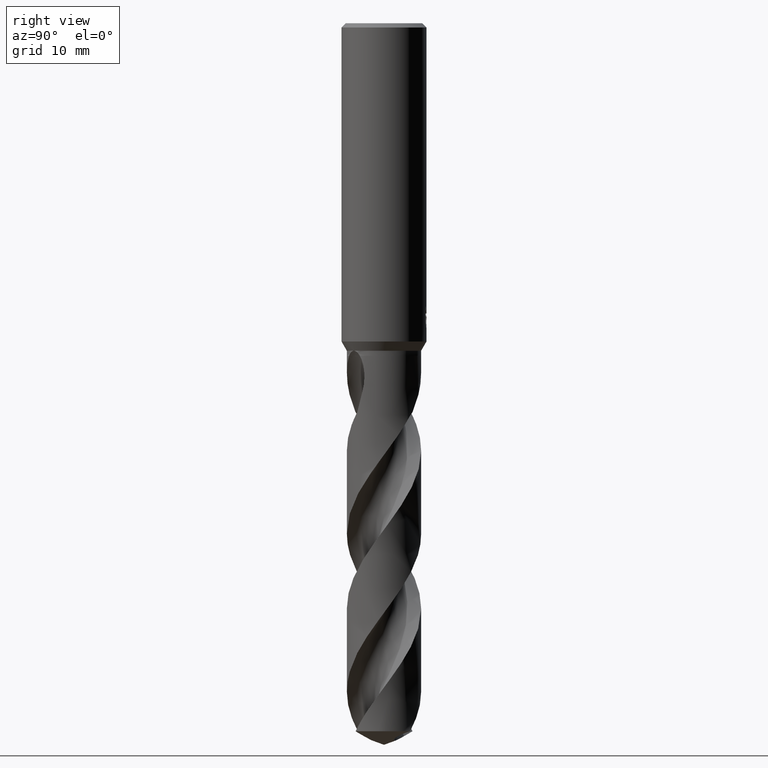
[diagram: clean part render]
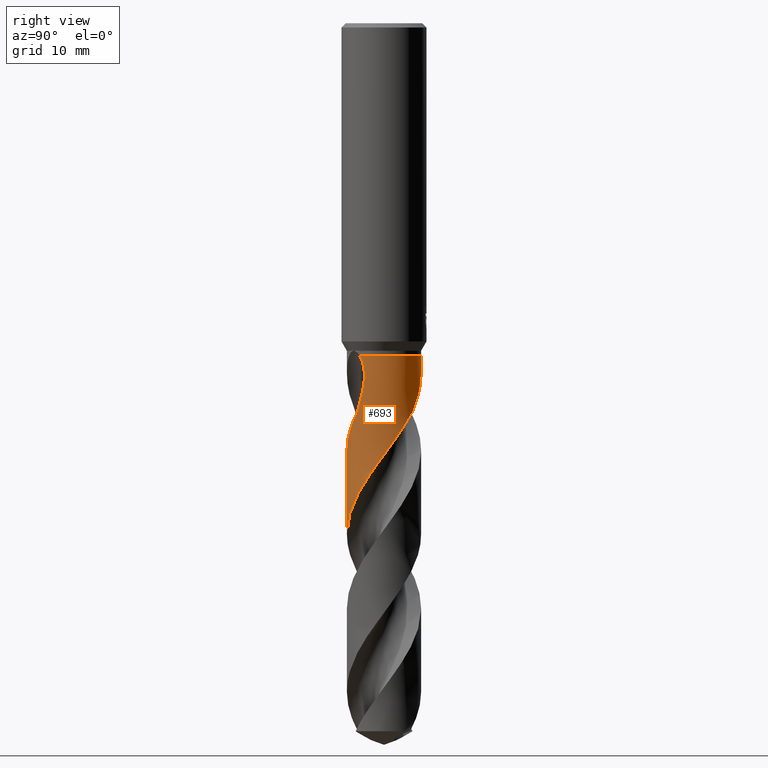
[diagram: same view with one face highlighted and labeled with its STEP entity id]
A machine part, right view. The second image highlights one B-rep face of the part: STEP entity #693.
In plain terms, the highlighted conical surface has half-angle 0 deg.
Its self-contained STEP definition (entity closure, byte-faithful):
#305=VERTEX_POINT('',#820);
#317=EDGE_CURVE('',#751,#545,#832,.T.);
#335=VERTEX_POINT('',#852);
#453=EDGE_CURVE('',#335,#305,#979,.T.);
#485=EDGE_CURVE('',#335,#521,#1014,.T.);
#511=EDGE_CURVE('',#545,#771,#1043,.T.);
#521=VERTEX_POINT('',#1055);
#523=VERTEX_POINT('',#1057);
#545=VERTEX_POINT('',#1082);
#573=EDGE_CURVE('',#523,#521,#1115,.T.);
#589=EDGE_CURVE('',#751,#665,#1132,.T.);
#627=EDGE_CURVE('',#771,#523,#1173,.T.);
#665=VERTEX_POINT('',#1214);
#693=ADVANCED_FACE('',(#1244),#1245,.T.);
#731=EDGE_CURVE('',#305,#665,#1288,.T.);
#751=VERTEX_POINT('',#1311);
#771=VERTEX_POINT('',#1331);
#820=CARTESIAN_POINT('',(3.34534853535633,4.04601659429047,-54.943));
#832=CIRCLE('',#1533,5.2499);
#852=CARTESIAN_POINT('',(5.03929219996868E-010,-5.24994741629352,-72.1729101661895));
#979=B_SPLINE_CURVE_WITH_KNOTS('',3,(#2623,#2624,#2625,#2626,#2627,#2628,#2629,#2630,#2631,#2632,#2633,#2634,#2635,#2636,#2637,#2638,#2639,#2640,#2641,#2642,#2643,#2644,#2645,#2646,#2647,#2648,#2649,#2650,#2651,#2652,#2653,#2654,#2655,#2656,#2657,#2658,#2659,#2660,#2661,#2662,#2663,#2664,#2665,#2666,#2667,#2668,#2669,#2670,#2671,#2672,#2673,#2674,#2675,#2676,#2677,#2678,#2679,#2680,#2681,#2682,#2683,#2684,#2685,#2686,#2687,#2688,#2689,#2690,#2691,#2692,#2693,#2694,#2695,#2696,#2697,#2698),.UNSPECIFIED.,.F.,.F.,(4,2,2,2,2,2,2,2,2,2,2,2,2,2,2,2,2,2,2,2,2,2,2,2,2,2,2,2,2,2,2,2,2,2,2,2,2,4),(0.0,1.5528327753264,4.42357731136501,5.53483794826949,8.50429462413124,8.86149413355706,11.6809212029721,13.445651179475,15.2250571269194,16.3347312932081,19.2233171328241,20.3875549660882,22.8712285889042,23.9649556648263,25.5303771923254,26.9790196120816,27.0686636719924,29.5796790621381,32.4658920751266,33.538598225695,35.9475975192439,37.9906535802583,38.1703103055075,40.7507350819525,42.5585889797768,45.4567038047538,45.597230985784,50.6030400997125,51.8728951148334,52.4252917677714,53.7623057861514,54.5502108914369,54.9199326118842,55.1482577412486,55.3643236374601,55.6588206816148,56.2808397133437,57.0414279453845),.UNSPECIFIED.);
#1014=LINE('',#2754,#2755);
#1043=B_SPLINE_CURVE_WITH_KNOTS('',3,(#2968,#2969,#2970,#2971,#2972,#2973,#2974,#2975,#2976,#2977),.UNSPECIFIED.,.F.,.F.,(4,2,2,2,4),(0.0,0.984871041529756,2.36181917695434,3.08766115270987,3.84535580056174),.UNSPECIFIED.);
#1055=CARTESIAN_POINT('',(-3.99559332444758E-012,-5.24992526825895,-60.4147054853089));
#1057=CARTESIAN_POINT('',(3.64909590896185,-3.77434844065602,-54.943));
#1082=CARTESIAN_POINT('',(3.97808055895845,-3.42583202688585,-47.0));
#1115=B_SPLINE_CURVE_WITH_KNOTS('',3,(#3097,#3098,#3099,#3100,#3101,#3102,#3103,#3104,#3105,#3106,#3107,#3108,#3109,#3110,#3111,#3112,#3113,#3114,#3115,#3116,#3117,#3118,#3119,#3120,#3121,#3122,#3123,#3124,#3125,#3126,#3127,#3128,#3129,#3130,#3131,#3132,#3133,#3134,#3135,#3136,#3137,#3138,#3139,#3140,#3141,#3142,#3143,#3144,#3145,#3146,#3147,#3148,#3149,#3150,#3151,#3152,#3153,#3154,#3155,#3156,#3157,#3158,#3159,#3160,#3161,#3162,#3163,#3164,#3165,#3166,#3167,#3168,#3169,#3170,#3171,#3172,#3173,#3174,#3175,#3176,#3177,#3178,#3179,#3180,#3181,#3182,#3183,#3184,#3185,#3186,#3187,#3188,#3189,#3190),.UNSPECIFIED.,.F.,.F.,(4,2,2,2,2,2,2,2,2,2,2,2,2,2,2,2,2,2,2,2,2,2,2,2,2,2,2,2,2,2,2,2,2,2,2,2,2,2,2,2,2,2,2,2,2,2,4),(0.0,0.218900907622295,0.355971586849809,0.432761159877145,1.00729394286682,1.20911081678199,1.33857883989687,1.46038259756916,1.62395895345096,1.80589942392371,1.85265844068296,2.53359762097849,2.9851295628605,3.43931027301974,3.92448193095908,5.25004073278514,5.86105947736811,8.60029342657657,8.95952701322767,9.31615505626884,10.751008268912,11.1055741881423,13.010235324333,15.9002888415628,17.1059275413991,19.9661103479444,21.4090782962643,22.5415575884902,24.9588343525721,26.1224938919784,28.406778917234,29.8240623479785,32.2041687833943,33.6909897853756,36.3072777003059,36.7989840981917,38.6760900294424,40.1214018238335,40.236382545399,43.5277731244668,44.0373212063479,45.8357750178885,48.3857973482781,50.2811096713648,51.7100860810326,53.8611029830232,56.0238417345851),.UNSPECIFIED.);
#1132=LINE('',#3239,#3240);
#1173=B_SPLINE_CURVE_WITH_KNOTS('',3,(#3482,#3483,#3484,#3485),.UNSPECIFIED.,.F.,.F.,(4,4),(0.0,3.01713756803321),.UNSPECIFIED.);
#1214=CARTESIAN_POINT('',(-1.55507784581112E-012,5.24990444984121,-49.3623831494526));
#1244=FACE_OUTER_BOUND('',#3839,.T.);
#1245=CONICAL_SURFACE('',#3840,5.24995,1.88362383253705E-006);
#1288=B_SPLINE_CURVE_WITH_KNOTS('',3,(#3949,#3950,#3951,#3952,#3953,#3954,#3955,#3956,#3957,#3958,#3959,#3960,#3961,#3962),.UNSPECIFIED.,.F.,.F.,(4,2,2,2,2,2,4),(0.0,2.5722121825977,3.9766924607289,5.24878709748098,6.72663681603435,8.5018608177966,9.41417577192885),.UNSPECIFIED.);
#1311=CARTESIAN_POINT('',(-6.43043707180667E-016,5.2499,-47.0));
#1331=CARTESIAN_POINT('',(4.27153477260094,-3.05213710972693,-52.06834233837));
#1533=AXIS2_PLACEMENT_3D('',#5362,#5363,#5364);
#2623=CARTESIAN_POINT('',(3.72328096844917,3.70130771889939,-100.089156270102));
#2624=CARTESIAN_POINT('',(3.50694850272715,3.91892335407543,-99.6723052542784));
#2625=CARTESIAN_POINT('',(3.27178224120766,4.11730396300411,-99.256183900892));
#2626=CARTESIAN_POINT('',(2.5564147718994,4.62053954496879,-98.0709409583676));
#2627=CARTESIAN_POINT('',(2.04261497685215,4.8694877531558,-97.3171238742232));
#2628=CARTESIAN_POINT('',(1.28857375391131,5.09413517879393,-96.2510670138225));
#2629=CARTESIAN_POINT('',(1.07491809905377,5.14344565629123,-95.951971250655));
#2630=CARTESIAN_POINT('',(0.280693944666176,5.27511166513802,-94.8595637104971));
#2631=CARTESIAN_POINT('',(-0.308467598951023,5.27343435576759,-94.0814266062949));
#2632=CARTESIAN_POINT('',(-0.954138207072874,5.16303504322634,-93.1909527360027));
#2633=CARTESIAN_POINT('',(-1.02314916578896,5.14980503800739,-93.0952445144342));
#2634=CARTESIAN_POINT('',(-1.63604455749928,5.01946193270219,-92.2437851610799));
#2635=CARTESIAN_POINT('',(-2.15844443919623,4.81806988539473,-91.5023853471324));
#2636=CARTESIAN_POINT('',(-2.94137612785675,4.36259086923387,-90.2764166447874));
#2637=CARTESIAN_POINT('',(-3.22464995946416,4.15763549866506,-89.8014658804127));
#2638=CARTESIAN_POINT('',(-3.74919045336425,3.69186811365883,-88.8535930673029));
#2639=CARTESIAN_POINT('',(-3.98824374699878,3.43220925461422,-88.3813581067076));
#2640=CARTESIAN_POINT('',(-4.3311926460454,2.97509675851193,-87.608607975809));
#2641=CARTESIAN_POINT('',(-4.45149599237996,2.79179782351957,-87.3104170981579));
#2642=CARTESIAN_POINT('',(-4.84154523144185,2.10829682511654,-86.2417753271804));
#2643=CARTESIAN_POINT('',(-5.04123877867031,1.57212416372996,-85.4850630073953));
#2644=CARTESIAN_POINT('',(-5.19537274100694,0.789199429965392,-84.4034007211567));
#2645=CARTESIAN_POINT('',(-5.22487833696057,0.561698264074122,-84.0910031005128));
#2646=CARTESIAN_POINT('',(-5.27044182017892,-0.155982527105783,-83.1169991015526));
#2647=CARTESIAN_POINT('',(-5.23295770106873,-0.64625430041712,-82.4636758871829));
#2648=CARTESIAN_POINT('',(-5.08207281207632,-1.33457178111072,-81.5087720419319));
#2649=CARTESIAN_POINT('',(-5.02313059317208,-1.54165290955905,-81.2154741209159));
#2650=CARTESIAN_POINT('',(-4.84905807353317,-2.03563676347823,-80.5055746536069));
#2651=CARTESIAN_POINT('',(-4.72101867525643,-2.31727419564485,-80.0903022903021));
#2652=CARTESIAN_POINT('',(-4.42761640968424,-2.83553034086915,-79.2872766077061));
#2653=CARTESIAN_POINT('',(-4.26689351500293,-3.07191250829142,-78.9028080335704));
#2654=CARTESIAN_POINT('',(-4.07736578647952,-3.30718476255756,-78.4915946729041));
#2655=CARTESIAN_POINT('',(-4.06627517224331,-3.32081131418862,-78.467662242876));
#2656=CARTESIAN_POINT('',(-3.74228111468926,-3.7148331658986,-77.773180212917));
#2657=CARTESIAN_POINT('',(-3.3768647791155,-4.05016193181881,-77.112667437258));
#2658=CARTESIAN_POINT('',(-2.49940893822309,-4.65173454470024,-75.6768629141862));
#2659=CARTESIAN_POINT('',(-1.9812012910128,-4.89497143996427,-74.9059936176627));
#2660=CARTESIAN_POINT('',(-1.23022669483935,-5.10815678127437,-73.8533071602375));
#2661=CARTESIAN_POINT('',(-1.02357655631693,-5.15353117574635,-73.5687851950996));
#2662=CARTESIAN_POINT('',(-0.346300173922423,-5.25994762674327,-72.6423156879011));
#2663=CARTESIAN_POINT('',(0.130172169671388,-5.26977898068787,-71.9978737370637));
#2664=CARTESIAN_POINT('',(1.00212160802612,-5.16913125015764,-70.8136942553806));
#2665=CARTESIAN_POINT('',(1.39455405816542,-5.07716816824571,-70.2752127227748));
#2666=CARTESIAN_POINT('',(1.80484814501263,-4.93007737564363,-69.6823184387417));
#2667=CARTESIAN_POINT('',(1.83782099850252,-4.91788053930696,-69.634424122586));
#2668=CARTESIAN_POINT('',(2.34276125873446,-4.72531655917414,-68.8989938953894));
#2669=CARTESIAN_POINT('',(2.78720050056542,-4.47781493242962,-68.2223913508129));
#2670=CARTESIAN_POINT('',(3.4724872068301,-3.95348505692353,-67.0572381485319));
#2671=CARTESIAN_POINT('',(3.73160595929654,-3.70980144168883,-66.5740987146205));
#2672=CARTESIAN_POINT('',(4.33663723342395,-3.01302959082821,-65.3242357381563));
#2673=CARTESIAN_POINT('',(4.63654992086904,-2.52695422115104,-64.5694150766968));
#2674=CARTESIAN_POINT('',(4.8632966428127,-1.97759518521624,-63.7619407814194));
#2675=CARTESIAN_POINT('',(4.87358376221663,-1.95210695926167,-63.7245769237859));
#2676=CARTESIAN_POINT('',(5.24392576157834,-1.01326503929479,-62.3537130554681));
#2677=CARTESIAN_POINT('',(5.3404542330647,-0.0177039245301587,-61.0616031305067));
#2678=CARTESIAN_POINT('',(5.11931987540726,1.18994737208992,-59.3940631131489));
#2679=CARTESIAN_POINT('',(5.05728499386605,1.43119962776738,-59.0527874443791));
#2680=CARTESIAN_POINT('',(4.94299915374695,1.77209403812335,-58.56818960994));
#2681=CARTESIAN_POINT('',(4.9050003699449,1.87476256967568,-58.4216214365631));
#2682=CARTESIAN_POINT('',(4.7634163938585,2.22313780668945,-57.921583810408));
#2683=CARTESIAN_POINT('',(4.64729320805311,2.45634265943244,-57.5865020148757));
#2684=CARTESIAN_POINT('',(4.43351539287486,2.81596403555765,-57.0092481309313));
#2685=CARTESIAN_POINT('',(4.35059509793899,2.94199712663917,-56.7939788107688));
#2686=CARTESIAN_POINT('',(4.22534061968244,3.11654326276794,-56.4702871415005));
#2687=CARTESIAN_POINT('',(4.20160887903301,3.14826791169317,-56.4070530113674));
#2688=CARTESIAN_POINT('',(4.14360321137377,3.22389668034503,-56.2647477861488));
#2689=CARTESIAN_POINT('',(4.12075610840457,3.25306464601888,-56.2109468578328));
#2690=CARTESIAN_POINT('',(4.07476381777351,3.31046960582397,-56.1071003950768));
#2691=CARTESIAN_POINT('',(4.05173927410601,3.33862375589422,-56.0570962691568));
#2692=CARTESIAN_POINT('',(3.99563285815579,3.40574384110597,-55.939956853127));
#2693=CARTESIAN_POINT('',(3.96200493509858,3.4448403405996,-55.8733397857676));
#2694=CARTESIAN_POINT('',(3.85305009840623,3.56763785074187,-55.66860292637));
#2695=CARTESIAN_POINT('',(3.77344787227832,3.65202985342691,-55.5343073117513));
#2696=CARTESIAN_POINT('',(3.58219178607021,3.84075027731711,-55.2437581646942));
#2697=CARTESIAN_POINT('',(3.46840875458521,3.94426766371818,-55.0909048600857));
#2698=CARTESIAN_POINT('',(3.34534853535632,4.04601659429047,-54.943));
#2754=CARTESIAN_POINT('',(6.42774595237521E-016,-5.24995,-73.5445781350512));
#2755=VECTOR('',#5564,1.0);
#2968=CARTESIAN_POINT('',(3.97808055895845,-3.42583202688585,-47.0));
#2969=CARTESIAN_POINT('',(4.10779716616633,-3.27520568979682,-47.2612658807402));
#2970=CARTESIAN_POINT('',(4.21001055878972,-3.13923892593489,-47.5859758983992));
#2971=CARTESIAN_POINT('',(4.39342544874016,-2.87985998855063,-48.479856010776));
#2972=CARTESIAN_POINT('',(4.4542222224967,-2.77874868361555,-49.111693206882));
#2973=CARTESIAN_POINT('',(4.45981683268397,-2.76975816474669,-50.190572877963));
#2974=CARTESIAN_POINT('',(4.44556898911654,-2.7931087293885,-50.5630636028889));
#2975=CARTESIAN_POINT('',(4.38482803400108,-2.88757837350027,-51.3168365015278));
#2976=CARTESIAN_POINT('',(4.33708288348503,-2.9603998411866,-51.6955249257101));
#2977=CARTESIAN_POINT('',(4.27153477260094,-3.05213710972693,-52.06834233837));
#3097=CARTESIAN_POINT('',(3.64909590896185,-3.77434844065602,-54.943));
#3098=CARTESIAN_POINT('',(3.61929948768984,-3.80315621888298,-55.0030538407458));
#3099=CARTESIAN_POINT('',(3.5890825236666,-3.83168927572649,-55.0630553334866));
#3100=CARTESIAN_POINT('',(3.53911373729298,-3.8777532403733,-55.1604911606265));
#3101=CARTESIAN_POINT('',(3.51969603153592,-3.89538777207015,-55.197932413081));
#3102=CARTESIAN_POINT('',(3.48906329522339,-3.92278834509998,-55.2562915168584));
#3103=CARTESIAN_POINT('',(3.47800404876927,-3.93259724655125,-55.2772202188916));
#3104=CARTESIAN_POINT('',(3.38362659791139,-4.01559193568343,-55.4545990938676));
#3105=CARTESIAN_POINT('',(3.29825963547603,-4.08608776805141,-55.6069022353837));
#3106=CARTESIAN_POINT('',(3.1762554026623,-4.18026688537307,-55.8143213888733));
#3107=CARTESIAN_POINT('',(3.1441651936206,-4.20445970345363,-55.8680052714836));
#3108=CARTESIAN_POINT('',(3.09077493611335,-4.24374935129797,-55.956084330782));
#3109=CARTESIAN_POINT('',(3.06976354969338,-4.25897353440787,-55.9904416004435));
#3110=CARTESIAN_POINT('',(3.0286824241173,-4.28827590569902,-56.0570997374138));
#3111=CARTESIAN_POINT('',(3.00865033878129,-4.30235444583603,-56.0893699084916));
#3112=CARTESIAN_POINT('',(2.96143212549069,-4.33504725479557,-56.1649743589553));
#3113=CARTESIAN_POINT('',(2.93418312785364,-4.35353721861517,-56.2082520011326));
#3114=CARTESIAN_POINT('',(2.87624950617773,-4.39205700985777,-56.2997314566291));
#3115=CARTESIAN_POINT('',(2.84557107394739,-4.41199445261797,-56.3478641952355));
#3116=CARTESIAN_POINT('',(2.80680377187945,-4.43661772573813,-56.4084888277863));
#3117=CARTESIAN_POINT('',(2.79890619360662,-4.44160438606146,-56.4208306883078));
#3118=CARTESIAN_POINT('',(2.67450350317236,-4.51968590186615,-56.6152232436743));
#3119=CARTESIAN_POINT('',(2.55608640091125,-4.58763264588391,-56.7994872868832));
#3120=CARTESIAN_POINT('',(2.3567583528372,-4.6920560167079,-57.105195210498));
#3121=CARTESIAN_POINT('',(2.27630715524715,-4.73160621355123,-57.2274351511866));
#3122=CARTESIAN_POINT('',(2.11313362228539,-4.80670751393956,-57.4723206157746));
#3123=CARTESIAN_POINT('',(2.03023037602251,-4.84231219223093,-57.5952214088712));
#3124=CARTESIAN_POINT('',(1.85668093832601,-4.91158993524832,-57.8488750546915));
#3125=CARTESIAN_POINT('',(1.76631808479243,-4.94480617488648,-57.9788426654099));
#3126=CARTESIAN_POINT('',(1.42483306662457,-5.05975312440632,-58.4652332548982));
#3127=CARTESIAN_POINT('',(1.16903929487893,-5.12488231735138,-58.8194972423746));
#3128=CARTESIAN_POINT('',(0.790022034183939,-5.19156070482006,-59.3401253748297));
#3129=CARTESIAN_POINT('',(0.669860094289614,-5.2084230380936,-59.5046425529145));
#3130=CARTESIAN_POINT('',(0.00904409426029862,-5.27795276541975,-60.4056420699762));
#3131=CARTESIAN_POINT('',(-0.53720350208898,-5.2506327097026,-61.1353764266231));
#3132=CARTESIAN_POINT('',(-1.13970077475936,-5.12522380329934,-61.967969644196));
#3133=CARTESIAN_POINT('',(-1.20924294656622,-5.10926297955862,-62.0644932421984));
#3134=CARTESIAN_POINT('',(-1.34711734672743,-5.07464696376474,-62.2568750078526));
#3135=CARTESIAN_POINT('',(-1.41544346482119,-5.0560149783095,-62.3527240463198));
#3136=CARTESIAN_POINT('',(-1.75665422538376,-4.95551149694269,-62.8341912844199));
#3137=CARTESIAN_POINT('',(-2.0230172782832,-4.85287914281735,-63.2190741207281));
#3138=CARTESIAN_POINT('',(-2.34325923356776,-4.69849749373262,-63.6998208551739));
#3139=CARTESIAN_POINT('',(-2.4060765344767,-4.66664093787032,-63.7950315545339));
#3140=CARTESIAN_POINT('',(-2.80212834768616,-4.45566957583536,-64.4021864227868));
#3141=CARTESIAN_POINT('',(-3.11591341150121,-4.24218207839073,-64.9137165530568));
#3142=CARTESIAN_POINT('',(-3.84119688237939,-3.62447025883974,-66.2023305735387));
#3143=CARTESIAN_POINT('',(-4.21415736734576,-3.18306220529332,-66.9727841166007));
#3144=CARTESIAN_POINT('',(-4.63082586260465,-2.48487475529058,-68.0740498055825));
#3145=CARTESIAN_POINT('',(-4.73935032332249,-2.2710892084795,-68.3977877012364));
#3146=CARTESIAN_POINT('',(-5.05496095529239,-1.52721725767955,-69.4903418008898));
#3147=CARTESIAN_POINT('',(-5.19045667785213,-0.971467363464194,-70.2542564744939));
#3148=CARTESIAN_POINT('',(-5.25640647984483,-0.119385205641949,-71.4110846880927));
#3149=CARTESIAN_POINT('',(-5.25509993154258,0.167812179881931,-71.7980251665391));
#3150=CARTESIAN_POINT('',(-5.21086133620221,0.67791485591724,-72.4899736821288));
#3151=CARTESIAN_POINT('',(-5.1770156382084,0.900572234451137,-72.7938314932902));
#3152=CARTESIAN_POINT('',(-5.02662114586605,1.5891569555964,-73.7483422036587));
#3153=CARTESIAN_POINT('',(-4.86030241926821,2.04217199285067,-74.3956313006367));
#3154=CARTESIAN_POINT('',(-4.52579384697318,2.67071824094143,-75.3578526223915));
#3155=CARTESIAN_POINT('',(-4.40378600540465,2.86741969550635,-75.6699830084356));
#3156=CARTESIAN_POINT('',(-4.00526629937803,3.42427933550845,-76.5972290127705));
#3157=CARTESIAN_POINT('',(-3.69433932427843,3.75769229744686,-77.2095738620192));
#3158=CARTESIAN_POINT('',(-3.12690425188585,4.22657920568996,-78.2044466575826));
#3159=CARTESIAN_POINT('',(-2.89568631190149,4.38820316237675,-78.5843529427054));
#3160=CARTESIAN_POINT('',(-2.24478205548874,4.76933467924927,-79.6058014558351));
#3161=CARTESIAN_POINT('',(-1.80609543617588,4.95219646091217,-80.243536083611));
#3162=CARTESIAN_POINT('',(-1.06275114025553,5.14977168324348,-81.2829987616828));
#3163=CARTESIAN_POINT('',(-0.77123943744183,5.2013983311272,-81.6818456131491));
#3164=CARTESIAN_POINT('',(0.0403915181625966,5.27547049058223,-82.7857321803293));
#3165=CARTESIAN_POINT('',(0.56243438906648,5.24562928558299,-83.4852269680396));
#3166=CARTESIAN_POINT('',(1.16758562454689,5.11942346293123,-84.3207114117057));
#3167=CARTESIAN_POINT('',(1.26270064854745,5.09679597457188,-84.4528321766375));
#3168=CARTESIAN_POINT('',(1.71752187087492,4.97508992659456,-85.0899959466922));
#3169=CARTESIAN_POINT('',(2.06674154542484,4.84046607231267,-85.5945512687492));
#3170=CARTESIAN_POINT('',(2.65439865152172,4.53861148966595,-86.4882080119922));
#3171=CARTESIAN_POINT('',(2.89887021328021,4.38650759044856,-86.8758337533941));
#3172=CARTESIAN_POINT('',(3.14806664313732,4.20148146641569,-87.2954013144031));
#3173=CARTESIAN_POINT('',(3.16633724154035,4.1877295873026,-87.3263158200779));
#3174=CARTESIAN_POINT('',(3.70500183211924,3.77674787692005,-88.2425708581));
#3175=CARTESIAN_POINT('',(4.14700343646064,3.28540501306736,-89.1229021059518));
#3176=CARTESIAN_POINT('',(4.53977740933357,2.6387519703509,-90.1453884983232));
#3177=CARTESIAN_POINT('',(4.58988529672772,2.55059482927832,-90.2823761225891));
#3178=CARTESIAN_POINT('',(4.80511758192586,2.14503219626136,-90.9036111843667));
#3179=CARTESIAN_POINT('',(4.94011401871499,1.81263223288117,-91.3875732645347));
#3180=CARTESIAN_POINT('',(5.18221726616584,0.982028193465511,-92.5582304873844));
#3181=CARTESIAN_POINT('',(5.25279989825285,0.477063252766318,-93.2395086571479));
#3182=CARTESIAN_POINT('',(5.24774920769654,-0.406893681041278,-94.4365988416626));
#3183=CARTESIAN_POINT('',(5.20501661454802,-0.782713610629517,-94.9454376765638));
#3184=CARTESIAN_POINT('',(5.05989717941343,-1.42857480709735,-95.8399607880193));
#3185=CARTESIAN_POINT('',(4.97511045219889,-1.7004197004892,-96.2233457491683));
#3186=CARTESIAN_POINT('',(4.70883570643501,-2.36055677404546,-97.1877240032606));
#3187=CARTESIAN_POINT('',(4.50084146161719,-2.73648071395622,-97.7659000199549));
#3188=CARTESIAN_POINT('',(3.99641191614535,-3.43170804956343,-98.9272497821362));
#3189=CARTESIAN_POINT('',(3.70156403802675,-3.74785528045917,-99.5069103793401));
#3190=CARTESIAN_POINT('',(3.37140304913226,-4.0244430024914,-100.089156270102));
#3239=CARTESIAN_POINT('',(-6.43049830212436E-016,5.24995,-73.5445781350512));
#3240=VECTOR('',#5735,1.0);
#3482=CARTESIAN_POINT('',(4.27153477265356,-3.05213710965329,-52.068342338399));
#3483=CARTESIAN_POINT('',(4.10228516561779,-3.28900887369589,-53.0309970097056));
#3484=CARTESIAN_POINT('',(3.89829519701868,-3.53341641008324,-53.9993798669502));
#3485=CARTESIAN_POINT('',(3.64909590896184,-3.77434844065602,-54.943));
#3839=EDGE_LOOP('',(#5847,#5848,#5849,#5850,#5851,#5852,#5853,#5854));
#3840=AXIS2_PLACEMENT_3D('',#5855,#5856,#5857);
#3949=CARTESIAN_POINT('',(3.34534853535633,4.04601659429047,-54.943));
#3950=CARTESIAN_POINT('',(2.99904503761377,4.33234727308404,-54.2127737655889));
#3951=CARTESIAN_POINT('',(2.60087190611768,4.58687743287599,-53.531967187499));
#3952=CARTESIAN_POINT('',(1.90657483844975,4.89885678705966,-52.394639285603));
#3953=CARTESIAN_POINT('',(1.65673416112167,4.98860137416888,-51.9944906543918));
#3954=CARTESIAN_POINT('',(1.17307520400491,5.12272691425403,-51.2199114976059));
#3955=CARTESIAN_POINT('',(0.941416254206849,5.17011301279624,-50.8490907964829));
#3956=CARTESIAN_POINT('',(0.439974530914716,5.2385019893137,-50.0498802626398));
#3957=CARTESIAN_POINT('',(0.166002776598292,5.25455766442219,-49.6152343165837));
#3958=CARTESIAN_POINT('',(-0.44241735108971,5.24175882451053,-48.6853873229795));
#3959=CARTESIAN_POINT('',(-0.80314817645383,5.20217489818181,-48.1562970089003));
#3960=CARTESIAN_POINT('',(-1.36730123477762,5.07252978062317,-47.4487499538275));
#3961=CARTESIAN_POINT('',(-1.57370980546994,5.01367796398129,-47.2103376142139));
#3962=CARTESIAN_POINT('',(-1.78826262263326,4.93594639380259,-47.0));
#5362=CARTESIAN_POINT('',(0.0,0.0,-47.0));
#5363=DIRECTION('',(0.0,0.0,-1.0));
#5364=DIRECTION('',(0.0,1.0,0.0));
#5564=DIRECTION('',(-2.30669771353476E-022,1.88362383253594E-006,0.999999999998226));
#5735=DIRECTION('',(-2.30669771353476E-022,1.88362383253594E-006,-0.999999999998226));
#5847=ORIENTED_EDGE('',*,*,#589,.F.);
#5848=ORIENTED_EDGE('',*,*,#317,.T.);
#5849=ORIENTED_EDGE('',*,*,#511,.T.);
#5850=ORIENTED_EDGE('',*,*,#627,.T.);
#5851=ORIENTED_EDGE('',*,*,#573,.T.);
#5852=ORIENTED_EDGE('',*,*,#485,.F.);
#5853=ORIENTED_EDGE('',*,*,#453,.T.);
#5854=ORIENTED_EDGE('',*,*,#731,.T.);
#5855=CARTESIAN_POINT('',(0.0,0.0,-73.5445781350512));
#5856=DIRECTION('',(0.0,-0.0,-1.0));
#5857=DIRECTION('',(0.0,1.0,0.0));